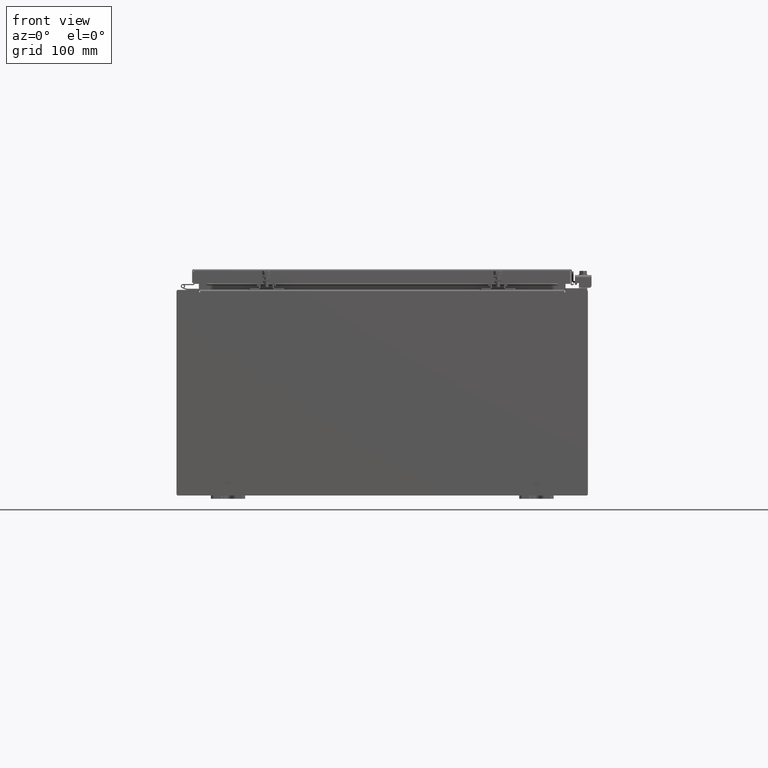
[diagram: clean part render]
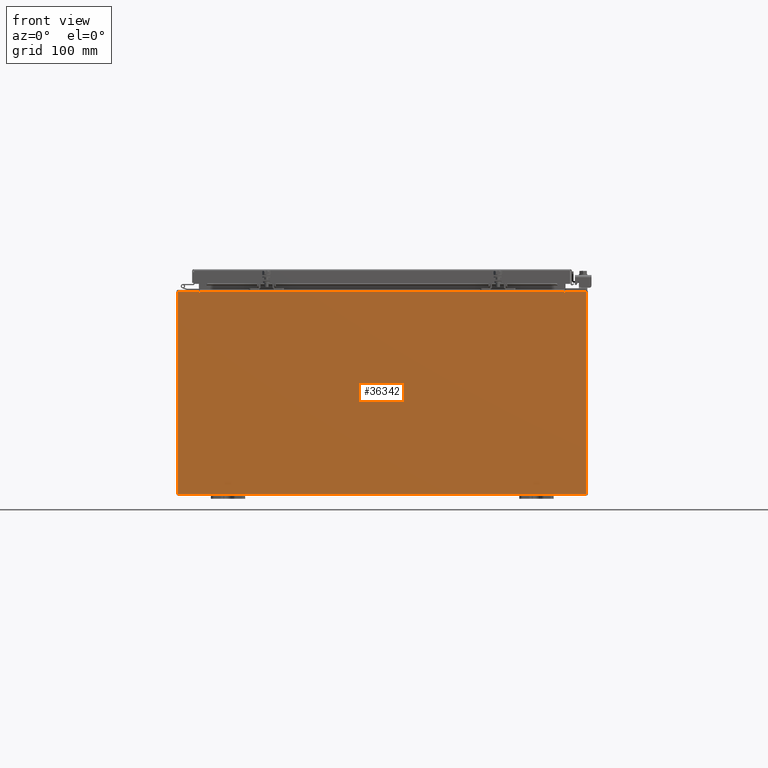
[diagram: same view with one face highlighted and labeled with its STEP entity id]
A machine part, front view. The second image highlights one B-rep face of the part: STEP entity #36342.
In plain terms, the highlighted planar face has unit normal (-0, 1, -0).
Its self-contained STEP definition (entity closure, byte-faithful):
#369 = AXIS2_PLACEMENT_3D ( 'NONE', #8559, #29136, #11515 ) ;
#1994 = VECTOR ( 'NONE', #30976, 39.37007874015748100 ) ;
#2445 = CARTESIAN_POINT ( 'NONE',  ( -10.67455000000000200, 0.0000000000000000000, 5.925300000000000000 ) ) ;
#2450 = DIRECTION ( 'NONE',  ( -1.000000000000000000, -0.0000000000000000000, -0.0000000000000000000 ) ) ;
#2461 = VERTEX_POINT ( 'NONE', #4150 ) ;
#2834 = CARTESIAN_POINT ( 'NONE',  ( -10.67455000000000200, -0.0000000000000000000, 0.0000000000000000000 ) ) ;
#3143 = CARTESIAN_POINT ( 'NONE',  ( 11.92530000000000000, 0.0000000000000000000, 5.925300000000001800 ) ) ;
#3177 = EDGE_CURVE ( 'NONE', #30718, #13415, #13478, .T. ) ;
#3588 = LINE ( 'NONE', #3143, #16408 ) ;
#3733 = VERTEX_POINT ( 'NONE', #24284 ) ;
#3861 = CARTESIAN_POINT ( 'NONE',  ( -11.92530000000000000, 0.0000000000000000000, 5.925300000000000000 ) ) ;
#4150 = CARTESIAN_POINT ( 'NONE',  ( 10.63720000000000400, 0.0000000000000000000, 5.912300000000001000 ) ) ;
#4178 = EDGE_CURVE ( 'NONE', #4639, #25195, #17597, .T. ) ;
#4639 = VERTEX_POINT ( 'NONE', #17086 ) ;
#5281 = DIRECTION ( 'NONE',  ( -0.0000000000000000000, -0.0000000000000000000, 1.000000000000000000 ) ) ;
#5713 = CARTESIAN_POINT ( 'NONE',  ( -10.65587500000000200, 0.0000000000000000000, 5.874950000000001000 ) ) ;
#5954 = CARTESIAN_POINT ( 'NONE',  ( -11.92530000000000000, 0.0000000000000000000, 5.925300000000000000 ) ) ;
#6268 = ORIENTED_EDGE ( 'NONE', *, *, #33107, .F. ) ;
#6406 = EDGE_CURVE ( 'NONE', #32460, #14069, #32190, .T. ) ;
#7826 = CARTESIAN_POINT ( 'NONE',  ( 10.63720000000000400, 0.0000000000000000000, 0.0000000000000000000 ) ) ;
#7973 = ORIENTED_EDGE ( 'NONE', *, *, #18971, .T. ) ;
#8559 = CARTESIAN_POINT ( 'NONE',  ( 0.0000000000000000000, 0.0000000000000000000, 0.0000000000000000000 ) ) ;
#8764 = ORIENTED_EDGE ( 'NONE', *, *, #12496, .F. ) ;
#9068 = DIRECTION ( 'NONE',  ( 0.0000000000000000000, 0.0000000000000000000, -1.000000000000000000 ) ) ;
#10071 = LINE ( 'NONE', #17070, #11488 ) ;
#10301 = CARTESIAN_POINT ( 'NONE',  ( 11.92530000000000000, 0.0000000000000000000, 5.925300000000001800 ) ) ;
#10590 = AXIS2_PLACEMENT_3D ( 'NONE', #16387, #16423, #16777 ) ;
#10766 = DIRECTION ( 'NONE',  ( 0.0000000000000000000, 0.0000000000000000000, 1.000000000000000000 ) ) ;
#10781 = CARTESIAN_POINT ( 'NONE',  ( 10.67455000000000200, 0.0000000000000000000, 0.0000000000000000000 ) ) ;
#11350 = CARTESIAN_POINT ( 'NONE',  ( -11.92530000000000000, 0.0000000000000000000, -5.925299999999999100 ) ) ;
#11370 = VERTEX_POINT ( 'NONE', #19133 ) ;
#11399 = PLANE ( 'NONE',  #369 ) ;
#11488 = VECTOR ( 'NONE', #2450, 39.37007874015748100 ) ;
#11515 = DIRECTION ( 'NONE',  ( 0.0000000000000000000, -0.0000000000000000000, -1.000000000000000000 ) ) ;
#11623 = CARTESIAN_POINT ( 'NONE',  ( -11.92530000000000000, 0.0000000000000000000, 5.925300000000000000 ) ) ;
#11699 = ORIENTED_EDGE ( 'NONE', *, *, #29156, .T. ) ;
#12000 = ORIENTED_EDGE ( 'NONE', *, *, #28930, .F. ) ;
#12198 = CIRCLE ( 'NONE', #32758, 0.01867499999999949400 ) ;
#12496 = EDGE_CURVE ( 'NONE', #11370, #13415, #32267, .T. ) ;
#12547 = EDGE_CURVE ( 'NONE', #32460, #4639, #31231, .T. ) ;
#12758 = DIRECTION ( 'NONE',  ( 1.000000000000000000, 0.0000000000000000000, 0.0000000000000000000 ) ) ;
#12849 = ORIENTED_EDGE ( 'NONE', *, *, #25078, .T. ) ;
#12882 = CARTESIAN_POINT ( 'NONE',  ( -10.63720000000000400, -1.707404996040164500E-016, 5.912300000000001000 ) ) ;
#13415 = VERTEX_POINT ( 'NONE', #2445 ) ;
#13478 = LINE ( 'NONE', #24530, #29416 ) ;
#14069 = VERTEX_POINT ( 'NONE', #10301 ) ;
#14640 = ORIENTED_EDGE ( 'NONE', *, *, #3177, .T. ) ;
#15008 = VERTEX_POINT ( 'NONE', #11350 ) ;
#16387 = CARTESIAN_POINT ( 'NONE',  ( 10.65587500000000200, 0.0000000000000000000, 5.874950000000001000 ) ) ;
#16408 = VECTOR ( 'NONE', #19533, 39.37007874015748100 ) ;
#16423 = DIRECTION ( 'NONE',  ( -0.0000000000000000000, 1.000000000000000000, -0.0000000000000000000 ) ) ;
#16539 = DIRECTION ( 'NONE',  ( 0.0000000000000000000, 0.0000000000000000000, -1.000000000000000000 ) ) ;
#16717 = ORIENTED_EDGE ( 'NONE', *, *, #37836, .F. ) ;
#16777 = DIRECTION ( 'NONE',  ( 0.0000000000000000000, 0.0000000000000000000, -1.000000000000000000 ) ) ;
#17060 = ORIENTED_EDGE ( 'NONE', *, *, #4178, .F. ) ;
#17070 = CARTESIAN_POINT ( 'NONE',  ( -11.92530000000000000, 0.0000000000000000000, -5.925299999999999100 ) ) ;
#17086 = CARTESIAN_POINT ( 'NONE',  ( 10.67455000000000200, 0.0000000000000000000, 5.874950000000001000 ) ) ;
#17261 = LINE ( 'NONE', #30744, #27589 ) ;
#17588 = LINE ( 'NONE', #7826, #32371 ) ;
#17597 = CIRCLE ( 'NONE', #10590, 0.01867499999999949400 ) ;
#17681 = CARTESIAN_POINT ( 'NONE',  ( 10.67455000000000200, 0.0000000000000000000, 5.925300000000001800 ) ) ;
#18292 = CARTESIAN_POINT ( 'NONE',  ( -10.63720000000000400, -1.707404996040164500E-016, 5.912300000000001000 ) ) ;
#18971 = EDGE_CURVE ( 'NONE', #15008, #30718, #27707, .T. ) ;
#19133 = CARTESIAN_POINT ( 'NONE',  ( -10.67455000000000200, 0.0000000000000000000, 5.874950000000001000 ) ) ;
#19533 = DIRECTION ( 'NONE',  ( 0.0000000000000000000, 0.0000000000000000000, -1.000000000000000000 ) ) ;
#22200 = VECTOR ( 'NONE', #12758, 39.37007874015748100 ) ;
#24284 = CARTESIAN_POINT ( 'NONE',  ( -10.63720000000000400, -0.0000000000000000000, 5.874950000000001000 ) ) ;
#24319 = DIRECTION ( 'NONE',  ( 1.000000000000000000, 0.0000000000000000000, 4.581600452255731000E-017 ) ) ;
#24530 = CARTESIAN_POINT ( 'NONE',  ( -11.92530000000000000, 0.0000000000000000000, 5.925300000000000000 ) ) ;
#25013 = ORIENTED_EDGE ( 'NONE', *, *, #12547, .F. ) ;
#25078 = EDGE_CURVE ( 'NONE', #14069, #33727, #3588, .T. ) ;
#25195 = VERTEX_POINT ( 'NONE', #27162 ) ;
#27162 = CARTESIAN_POINT ( 'NONE',  ( 10.63720000000000400, 0.0000000000000000000, 5.874950000000001000 ) ) ;
#27370 = VECTOR ( 'NONE', #5281, 39.37007874015748100 ) ;
#27589 = VECTOR ( 'NONE', #9068, 39.37007874015748100 ) ;
#27707 = LINE ( 'NONE', #5954, #27370 ) ;
#28493 = FACE_OUTER_BOUND ( 'NONE', #31938, .T. ) ;
#28712 = EDGE_CURVE ( 'NONE', #33727, #15008, #10071, .T. ) ;
#28915 = DIRECTION ( 'NONE',  ( 0.0000000000000000000, 0.0000000000000000000, 1.000000000000000000 ) ) ;
#28930 = EDGE_CURVE ( 'NONE', #3733, #11370, #12198, .T. ) ;
#29136 = DIRECTION ( 'NONE',  ( 0.0000000000000000000, -1.000000000000000000, 0.0000000000000000000 ) ) ;
#29156 = EDGE_CURVE ( 'NONE', #35892, #2461, #31176, .T. ) ;
#29416 = VECTOR ( 'NONE', #24319, 39.37007874015748100 ) ;
#29976 = ORIENTED_EDGE ( 'NONE', *, *, #6406, .T. ) ;
#30427 = ORIENTED_EDGE ( 'NONE', *, *, #28712, .T. ) ;
#30718 = VERTEX_POINT ( 'NONE', #11623 ) ;
#30744 = CARTESIAN_POINT ( 'NONE',  ( -10.63720000000000400, -0.0000000000000000000, 0.0000000000000000000 ) ) ;
#30976 = DIRECTION ( 'NONE',  ( 1.000000000000000000, 0.0000000000000000000, 4.581600452255731000E-017 ) ) ;
#31001 = VECTOR ( 'NONE', #16539, 39.37007874015748100 ) ;
#31176 = LINE ( 'NONE', #18292, #22200 ) ;
#31231 = LINE ( 'NONE', #10781, #31001 ) ;
#31333 = DIRECTION ( 'NONE',  ( 0.0000000000000000000, 0.0000000000000000000, -1.000000000000000000 ) ) ;
#31938 = EDGE_LOOP ( 'NONE', ( #8764, #12000, #6268, #11699, #16717, #17060, #25013, #29976, #12849, #30427, #7973, #14640 ) ) ;
#32190 = LINE ( 'NONE', #3861, #1994 ) ;
#32198 = VECTOR ( 'NONE', #28915, 39.37007874015748100 ) ;
#32267 = LINE ( 'NONE', #2834, #32198 ) ;
#32371 = VECTOR ( 'NONE', #10766, 39.37007874015748100 ) ;
#32460 = VERTEX_POINT ( 'NONE', #17681 ) ;
#32758 = AXIS2_PLACEMENT_3D ( 'NONE', #5713, #36439, #31333 ) ;
#33107 = EDGE_CURVE ( 'NONE', #35892, #3733, #17261, .T. ) ;
#33727 = VERTEX_POINT ( 'NONE', #36372 ) ;
#35892 = VERTEX_POINT ( 'NONE', #12882 ) ;
#36342 = ADVANCED_FACE ( 'NONE', ( #28493 ), #11399, .F. ) ;
#36372 = CARTESIAN_POINT ( 'NONE',  ( 11.92530000000000000, 0.0000000000000000000, -5.925299999999999100 ) ) ;
#36439 = DIRECTION ( 'NONE',  ( -0.0000000000000000000, 1.000000000000000000, -0.0000000000000000000 ) ) ;
#37836 = EDGE_CURVE ( 'NONE', #25195, #2461, #17588, .T. ) ;